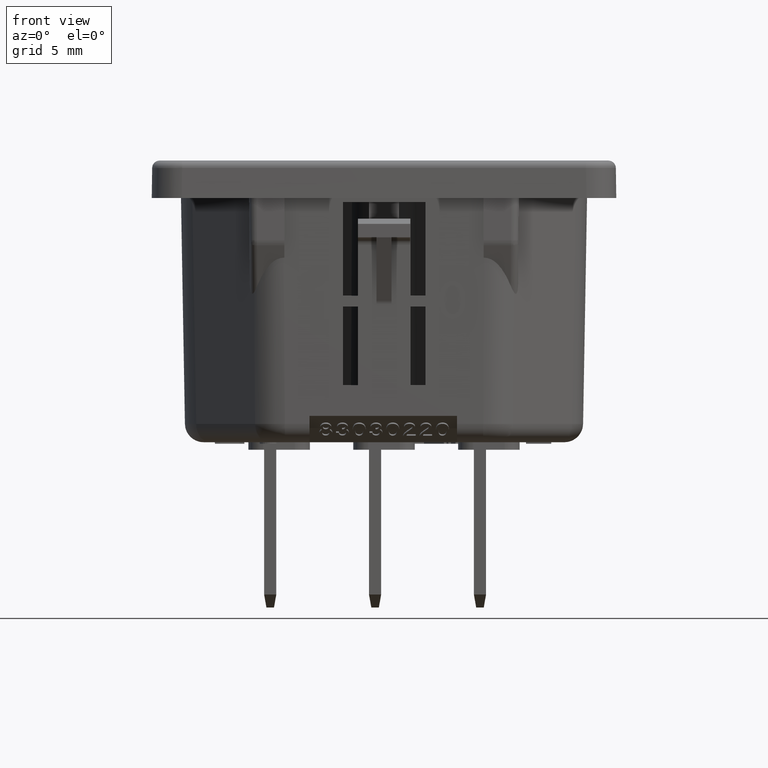
[diagram: clean part render]
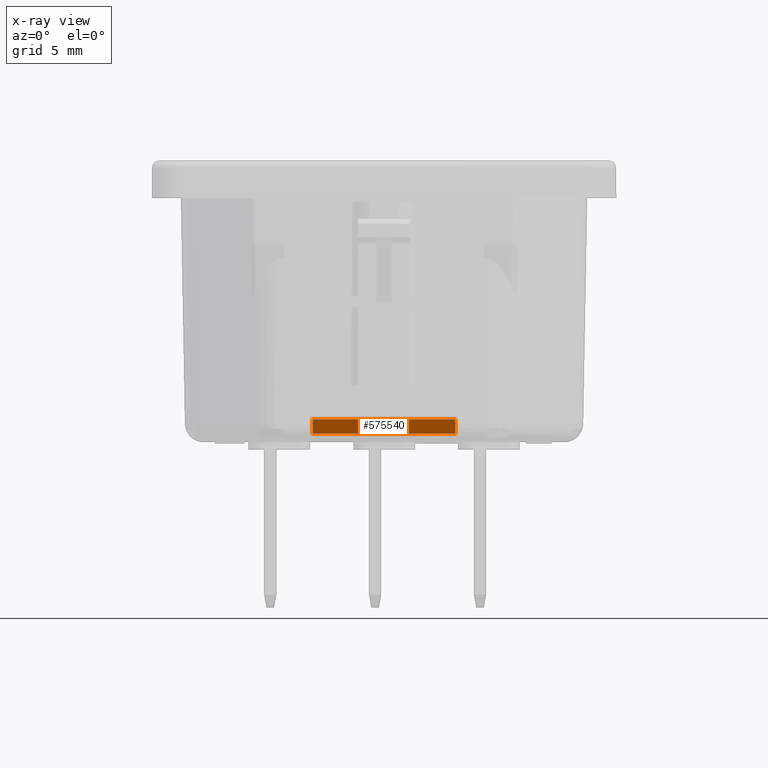
[diagram: x-ray — body ghosted, one internal face saturated and labeled with its STEP entity id]
A machine part, front view, then the same camera in x-ray: the body is ghosted and one INTERNAL B-rep face — a face not visible from any outside direction — is saturated and labeled: STEP entity #575540.
In plain terms, the highlighted planar face has unit normal (0, -0.7071, -0.7071).
Its self-contained STEP definition (entity closure, byte-faithful):
#575150=CARTESIAN_POINT('',(5.34358642804189,8.28338444637268,
-1.12780002323846));
#575160=DIRECTION('',(1.15860723781929E-9,1.78477917068121E-17,-1.));
#575170=DIRECTION('',(1.,0.,1.15860723781929E-9));
#575180=AXIS2_PLACEMENT_3D('',#575150,#575160,#575170);
#575190=PLANE('',#575180);
#575200=CARTESIAN_POINT('',(13.8934160702422,8.28338444637268,
-1.12780001333257));
#575210=DIRECTION('',(2.06785806506036E-26,-1.,-1.78477917068121E-17));
#575220=VECTOR('',#575210,1.);
#575230=LINE('',#575200,#575220);
#575240=CARTESIAN_POINT('',(13.8934160702422,-2.74006060037931,
-1.12780001333257));
#575250=VERTEX_POINT('',#575240);
#575260=CARTESIAN_POINT('',(13.8934160702422,-4.06086060037931,
-1.12780001333257));
#575270=VERTEX_POINT('',#575260);
#575280=EDGE_CURVE('',#575250,#575270,#575230,.T.);
#575290=ORIENTED_EDGE('',*,*,#575280,.F.);
#575300=CARTESIAN_POINT('',(5.34358642804189,-4.06086060037931,
-1.12780002323846));
#575310=DIRECTION('',(-1.,0.,-1.15860723781929E-9));
#575320=VECTOR('',#575310,1.);
#575330=LINE('',#575300,#575320);
#575340=CARTESIAN_POINT('',(4.3684160702422,-4.06086060037931,
-1.1278000243683));
#575350=VERTEX_POINT('',#575340);
#575360=EDGE_CURVE('',#575270,#575350,#575330,.T.);
#575370=ORIENTED_EDGE('',*,*,#575360,.F.);
#575380=CARTESIAN_POINT('',(4.3684160702422,8.28338444637268,
-1.1278000243683));
#575390=DIRECTION('',(-2.06785806506036E-26,1.,1.78477917068121E-17));
#575400=VECTOR('',#575390,1.);
#575410=LINE('',#575380,#575400);
#575420=CARTESIAN_POINT('',(4.3684160702422,-2.74006060037931,
-1.1278000243683));
#575430=VERTEX_POINT('',#575420);
#575440=EDGE_CURVE('',#575350,#575430,#575410,.T.);
#575450=ORIENTED_EDGE('',*,*,#575440,.F.);
#575460=CARTESIAN_POINT('',(5.34358642804189,-2.74006060037931,
-1.12780002323846));
#575470=DIRECTION('',(1.,0.,1.15860723781929E-9));
#575480=VECTOR('',#575470,1.);
#575490=LINE('',#575460,#575480);
#575500=EDGE_CURVE('',#575430,#575250,#575490,.T.);
#575510=ORIENTED_EDGE('',*,*,#575500,.F.);
#575520=EDGE_LOOP('',(#575510,#575450,#575370,#575290));
#575530=FACE_OUTER_BOUND('',#575520,.T.);
#575540=ADVANCED_FACE('',(#575530),#575190,.F.);